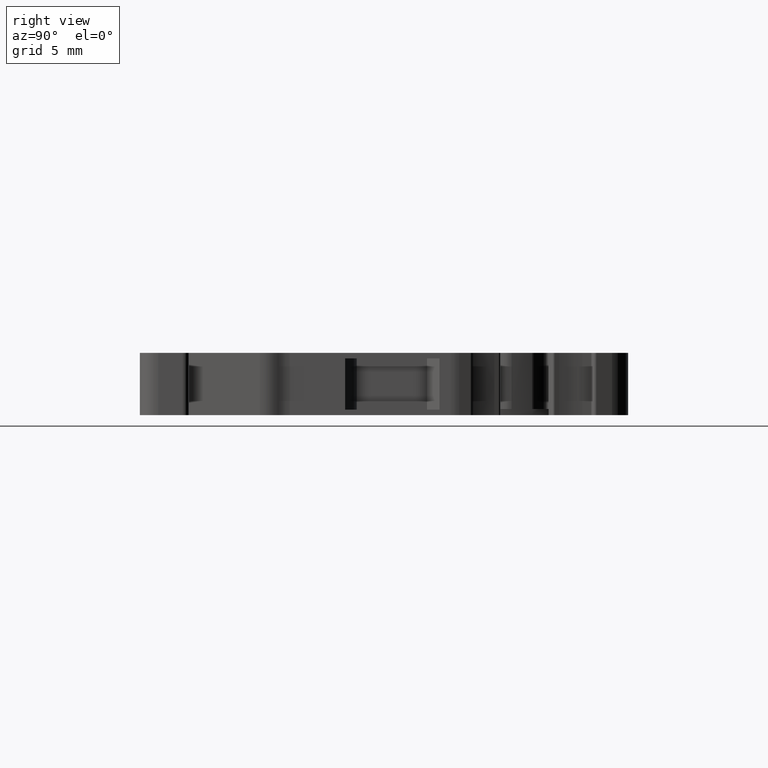
[diagram: clean part render]
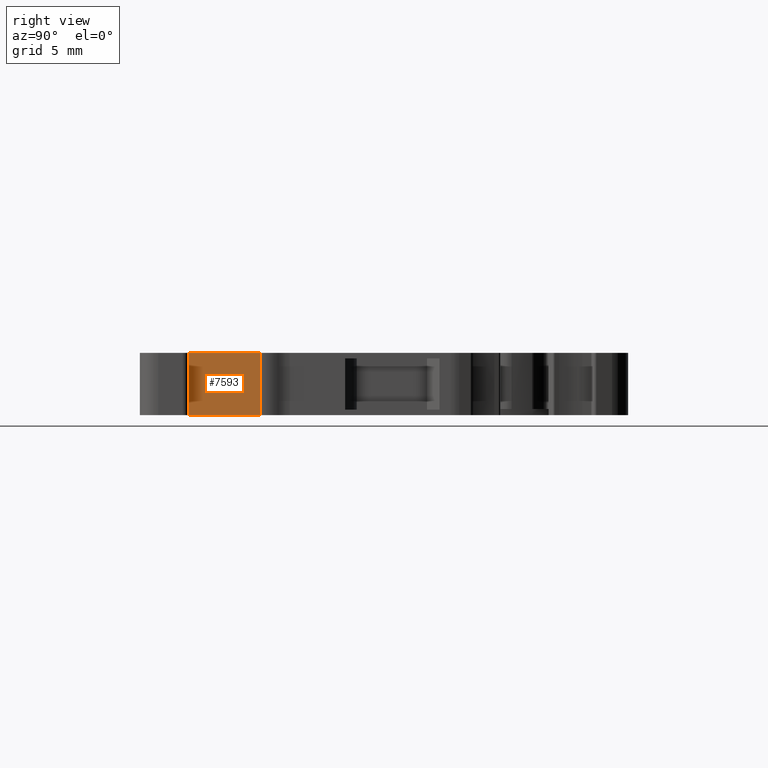
[diagram: same view with one face highlighted and labeled with its STEP entity id]
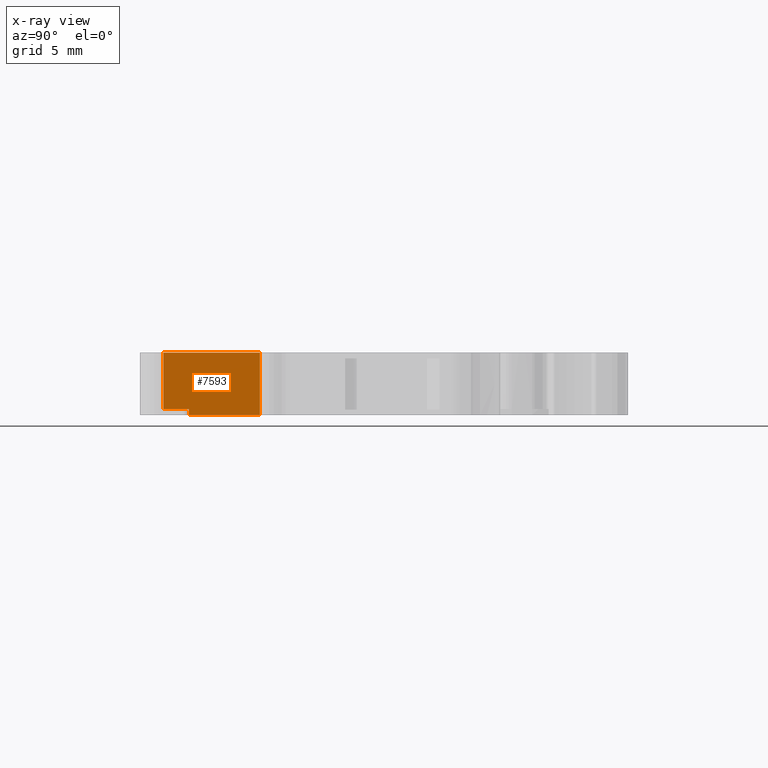
[diagram: x-ray of the same camera — body ghosted, the highlighted face saturated]
A machine part, right view. The second image highlights one B-rep face of the part: STEP entity #7593.
The next image is the same camera in x-ray: the body ghosted, the highlighted face saturated — about 0% of this face is hidden behind the body in this view.
In plain terms, the highlighted planar face has unit normal (0.9659, -0.2588, 0).
Its self-contained STEP definition (entity closure, byte-faithful):
#18 = EDGE_LOOP ( 'NONE', ( #739, #6894, #8141, #7613, #1047, #3168 ) ) ;
#352 = LINE ( 'NONE', #4396, #4316 ) ;
#739 = ORIENTED_EDGE ( 'NONE', *, *, #6641, .F. ) ;
#1036 = DIRECTION ( 'NONE',  ( -0.0000000000000000000, 0.0000000000000000000, 1.000000000000000000 ) ) ;
#1047 = ORIENTED_EDGE ( 'NONE', *, *, #5188, .T. ) ;
#1278 = DIRECTION ( 'NONE',  ( 0.0000000000000000000, 0.0000000000000000000, -1.000000000000000000 ) ) ;
#1280 = VECTOR ( 'NONE', #7169, 1000.000000000000000 ) ;
#1820 = LINE ( 'NONE', #4654, #5476 ) ;
#1839 = VERTEX_POINT ( 'NONE', #2740 ) ;
#2260 = FACE_OUTER_BOUND ( 'NONE', #18, .T. ) ;
#2303 = VERTEX_POINT ( 'NONE', #8482 ) ;
#2727 = EDGE_CURVE ( 'NONE', #3299, #4938, #1820, .T. ) ;
#2740 = CARTESIAN_POINT ( 'NONE',  ( 1479.040316424785500, 921.4726413045091200, -47.54999999999999700 ) ) ;
#2980 = CARTESIAN_POINT ( 'NONE',  ( 1478.485539229305900, 919.4020266925219900, 9.037842237415203400 ) ) ;
#3021 = EDGE_CURVE ( 'NONE', #1839, #8533, #7446, .T. ) ;
#3159 = CARTESIAN_POINT ( 'NONE',  ( 1478.485539229305900, 919.4020266925219900, -48.05000000000000400 ) ) ;
#3168 = ORIENTED_EDGE ( 'NONE', *, *, #3021, .F. ) ;
#3299 = VERTEX_POINT ( 'NONE', #6083 ) ;
#3376 = DIRECTION ( 'NONE',  ( 0.0000000000000000000, 0.0000000000000000000, -1.000000000000000000 ) ) ;
#3533 = LINE ( 'NONE', #3159, #8888 ) ;
#3639 = CARTESIAN_POINT ( 'NONE',  ( 1478.485539229305900, 919.4020266925219900, -47.54999999999999700 ) ) ;
#3860 = DIRECTION ( 'NONE',  ( 0.9659307613520786700, -0.2588006264942064300, 0.0000000000000000000 ) ) ;
#3882 = EDGE_CURVE ( 'NONE', #4938, #8040, #3533, .T. ) ;
#3897 = CARTESIAN_POINT ( 'NONE',  ( 1480.603740452746000, 927.3078642794299600, -48.05000000000000400 ) ) ;
#4035 = CARTESIAN_POINT ( 'NONE',  ( 1478.485539229305900, 919.4020266925219900, 9.037842237415203400 ) ) ;
#4252 = VECTOR ( 'NONE', #7681, 1000.000000000000200 ) ;
#4316 = VECTOR ( 'NONE', #1036, 1000.000000000000000 ) ;
#4396 = CARTESIAN_POINT ( 'NONE',  ( 1479.040316424785500, 921.4726413045091200, 9.037842237415203400 ) ) ;
#4654 = CARTESIAN_POINT ( 'NONE',  ( 1480.603740452746000, 927.3078642794299600, 9.037842237415203400 ) ) ;
#4747 = CARTESIAN_POINT ( 'NONE',  ( 1149.624559459735100, -308.0174771583438100, -42.94999999999999600 ) ) ;
#4938 = VERTEX_POINT ( 'NONE', #3897 ) ;
#5188 = EDGE_CURVE ( 'NONE', #2303, #8533, #8104, .T. ) ;
#5476 = VECTOR ( 'NONE', #1278, 1000.000000000000000 ) ;
#5486 = CARTESIAN_POINT ( 'NONE',  ( 1478.485539229305900, 919.4020266925219900, -47.54999999999999000 ) ) ;
#5727 = EDGE_CURVE ( 'NONE', #3299, #2303, #7423, .T. ) ;
#6083 = CARTESIAN_POINT ( 'NONE',  ( 1480.603740452746000, 927.3078642794299600, -42.94999999999999600 ) ) ;
#6233 = VECTOR ( 'NONE', #3376, 1000.000000000000000 ) ;
#6567 = DIRECTION ( 'NONE',  ( -0.2588006264942063800, -0.9659307613520785600, 0.0000000000000000000 ) ) ;
#6641 = EDGE_CURVE ( 'NONE', #8040, #1839, #352, .T. ) ;
#6894 = ORIENTED_EDGE ( 'NONE', *, *, #3882, .F. ) ;
#6956 = AXIS2_PLACEMENT_3D ( 'NONE', #2980, #3860, #8739 ) ;
#7169 = DIRECTION ( 'NONE',  ( -0.2588006264942063800, -0.9659307613520786700, 0.0000000000000000000 ) ) ;
#7423 = LINE ( 'NONE', #4747, #4252 ) ;
#7446 = LINE ( 'NONE', #3639, #1280 ) ;
#7593 = ADVANCED_FACE ( 'NONE', ( #2260 ), #8203, .T. ) ;
#7613 = ORIENTED_EDGE ( 'NONE', *, *, #5727, .T. ) ;
#7681 = DIRECTION ( 'NONE',  ( -0.2588006264942063800, -0.9659307613520785600, 0.0000000000000000000 ) ) ;
#8040 = VERTEX_POINT ( 'NONE', #8298 ) ;
#8104 = LINE ( 'NONE', #4035, #6233 ) ;
#8141 = ORIENTED_EDGE ( 'NONE', *, *, #2727, .F. ) ;
#8203 = PLANE ( 'NONE',  #6956 ) ;
#8298 = CARTESIAN_POINT ( 'NONE',  ( 1479.040316424785900, 921.4726413045091200, -48.05000000000000400 ) ) ;
#8482 = CARTESIAN_POINT ( 'NONE',  ( 1478.485539229305900, 919.4020266925219900, -42.94999999999999600 ) ) ;
#8533 = VERTEX_POINT ( 'NONE', #5486 ) ;
#8739 = DIRECTION ( 'NONE',  ( -0.2588006264942063800, -0.9659307613520785600, -0.0000000000000000000 ) ) ;
#8888 = VECTOR ( 'NONE', #6567, 1000.000000000000200 ) ;